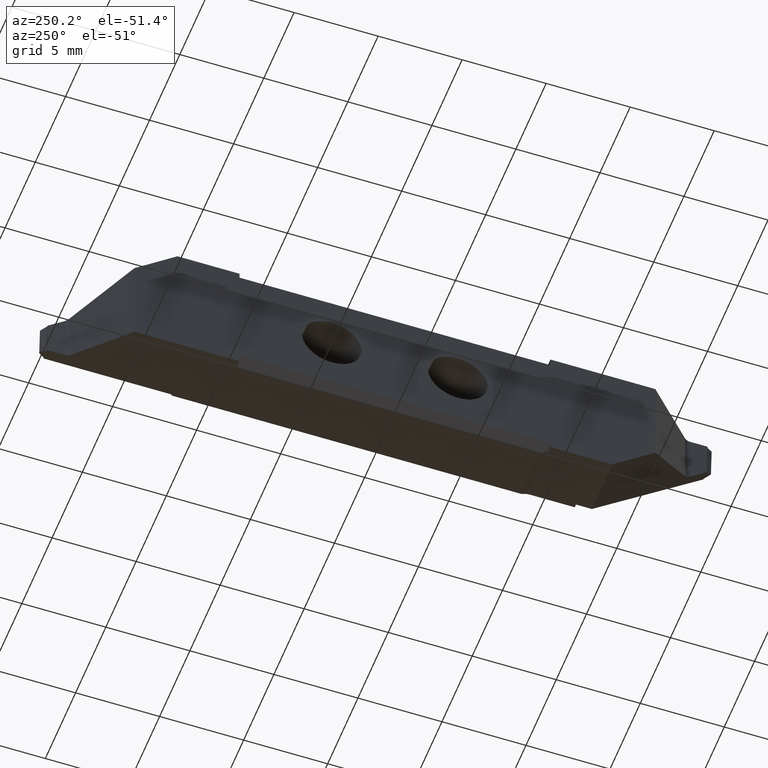
[diagram: clean part render]
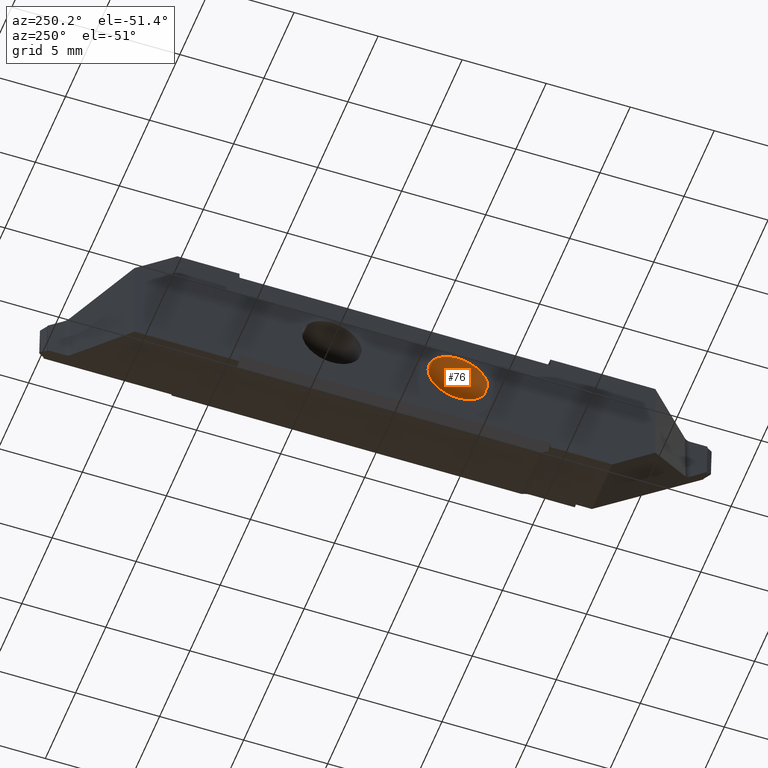
[diagram: same view with one face highlighted and labeled with its STEP entity id]
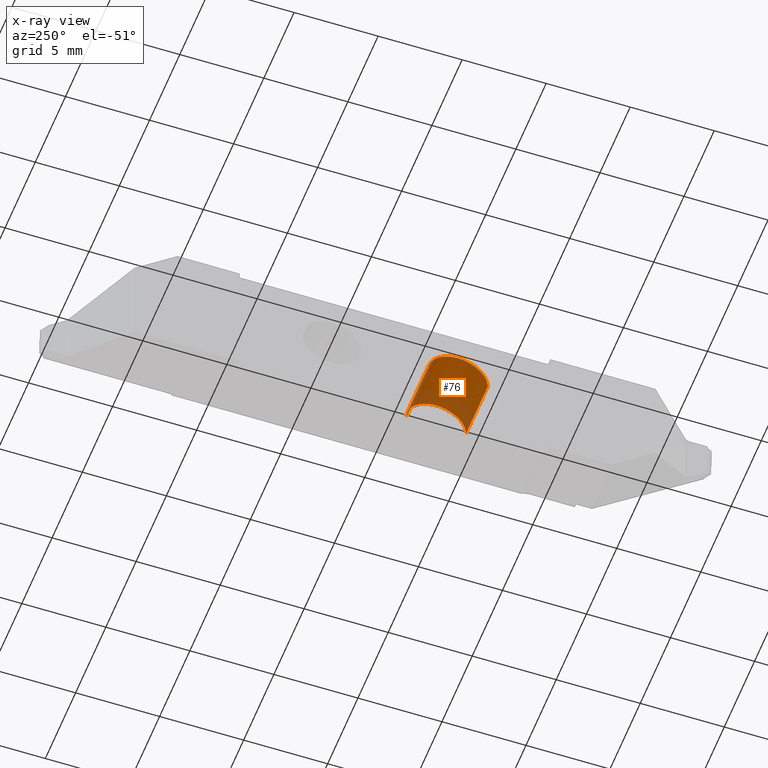
[diagram: x-ray of the same camera — body ghosted, the highlighted face saturated]
A machine part, auxiliary view. The second image highlights one B-rep face of the part: STEP entity #76.
The next image is the same camera in x-ray: the body ghosted, the highlighted face saturated — about 30% of this face is hidden behind the body in this view.
In plain terms, the highlighted cylindrical surface (edge-blend (fillet) strip) has radius 1.775 mm, axis along (1, 0, -0).
Its self-contained STEP definition (entity closure, byte-faithful):
#1=CARTESIAN_POINT('',(-0.3600007891,16.25,-3.999999929));
#2=DIRECTION('',(1.,0.,-1.972648604E-07));
#3=DIRECTION('',(1.972648607E-07,0.,1.));
#4=AXIS2_PLACEMENT_3D('',#1,#2,#3);
#5=CYLINDRICAL_SURFACE('',#4,1.775);
#6=CARTESIAN_POINT('',(-7.890594424E-07,14.475,-4.));
#7=DIRECTION('',(1.,0.,-1.972648604E-07));
#8=VECTOR('',#7,3.6);
#9=LINE('',#6,#8);
#10=CARTESIAN_POINT('',(-7.890594424E-07,14.475,-4.));
#11=VERTEX_POINT('',#10);
#12=CARTESIAN_POINT('',(3.599999211,14.475,-4.00000071));
#13=VERTEX_POINT('',#12);
#14=EDGE_CURVE('',#11,#13,#9,.T.);
#15=ORIENTED_EDGE('Edge 15',*,*,#14,.F.);
#24=CARTESIAN_POINT('',(3.599999211,18.025,-4.00000071));
#25=CARTESIAN_POINT('',(3.599999561,18.025,-2.22500071));
#26=CARTESIAN_POINT('',(3.599999561,16.25,-2.22500071));
#27=CARTESIAN_POINT('',(3.599999561,14.475,-2.22500071));
#28=CARTESIAN_POINT('',(3.599999211,14.475,-4.00000071));
#29=(BOUNDED_CURVE()B_SPLINE_CURVE(2,(#24,#25,#26,#27,#28),.UNSPECIFIED.,.F.,.F.)B_SPLINE_CURVE_WITH_KNOTS((3,2,3),(0.,1.570796327,3.141592654),.UNSPECIFIED.)CURVE()GEOMETRIC_REPRESENTATION_ITEM()RATIONAL_B_SPLINE_CURVE((1.,0.7071067812,1.,0.7071067812,1.)
)REPRESENTATION_ITEM(''));
#30=CARTESIAN_POINT('',(3.599999211,18.025,-4.00000071));
#31=VERTEX_POINT('',#30);
#32=EDGE_CURVE('',#31,#13,#29,.T.);
#33=ORIENTED_EDGE('Edge 248',*,*,#32,.T.);
#42=CARTESIAN_POINT('',(-7.890594424E-07,18.025,-4.));
#43=DIRECTION('',(1.,0.,-1.972648604E-07));
#44=VECTOR('',#43,3.6);
#45=LINE('',#42,#44);
#46=CARTESIAN_POINT('',(-7.890594424E-07,18.025,-4.));
#47=VERTEX_POINT('',#46);
#48=EDGE_CURVE('',#47,#31,#45,.T.);
#49=ORIENTED_EDGE('Edge 25',*,*,#48,.T.);
#58=CARTESIAN_POINT('',(-7.890594424E-07,14.475,-4.));
#59=CARTESIAN_POINT('',(-4.389143146E-07,14.475,-2.225));
#60=CARTESIAN_POINT('',(-4.389143146E-07,16.25,-2.225));
#61=CARTESIAN_POINT('',(-4.389143146E-07,18.025,-2.225));
#62=CARTESIAN_POINT('',(-7.890594424E-07,18.025,-4.));
#63=(BOUNDED_CURVE()B_SPLINE_CURVE(2,(#58,#59,#60,#61,#62),.UNSPECIFIED.,.F.,.F.)B_SPLINE_CURVE_WITH_KNOTS((3,2,3),(0.,1.570796327,3.141592654),.UNSPECIFIED.)CURVE()GEOMETRIC_REPRESENTATION_ITEM()RATIONAL_B_SPLINE_CURVE((1.,0.7071067812,1.,0.7071067812,1.)
)REPRESENTATION_ITEM(''));
#64=EDGE_CURVE('',#11,#47,#63,.T.);
#65=ORIENTED_EDGE('Edge 171',*,*,#64,.T.);
#74=EDGE_LOOP('',(#65,#49,#33,#15));
#75=FACE_OUTER_BOUND('Loop 31',#74,.T.);
#76=ADVANCED_FACE('Face 32',(#75),#5,.F.);